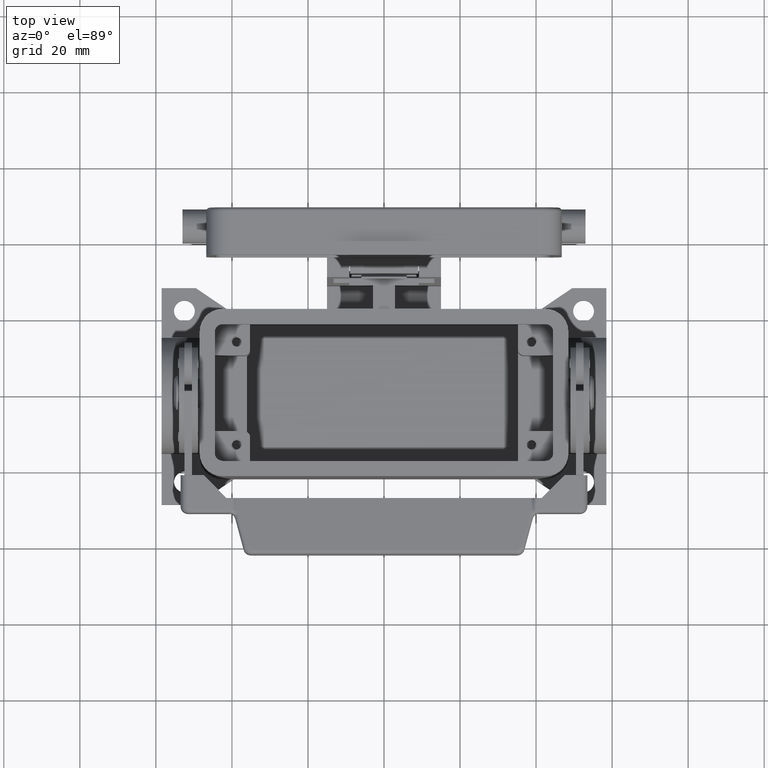
[diagram: clean part render]
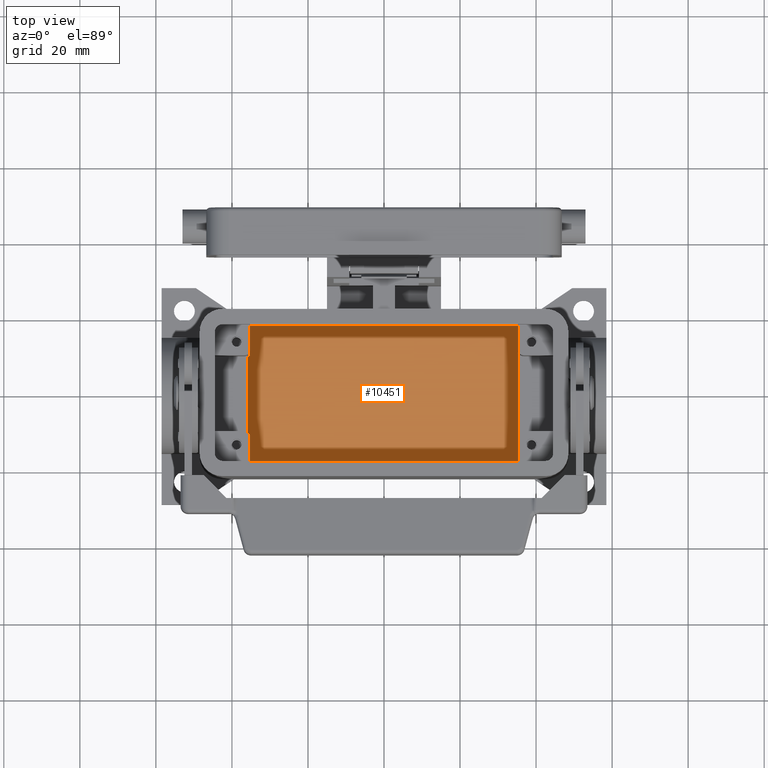
[diagram: same view with one face highlighted and labeled with its STEP entity id]
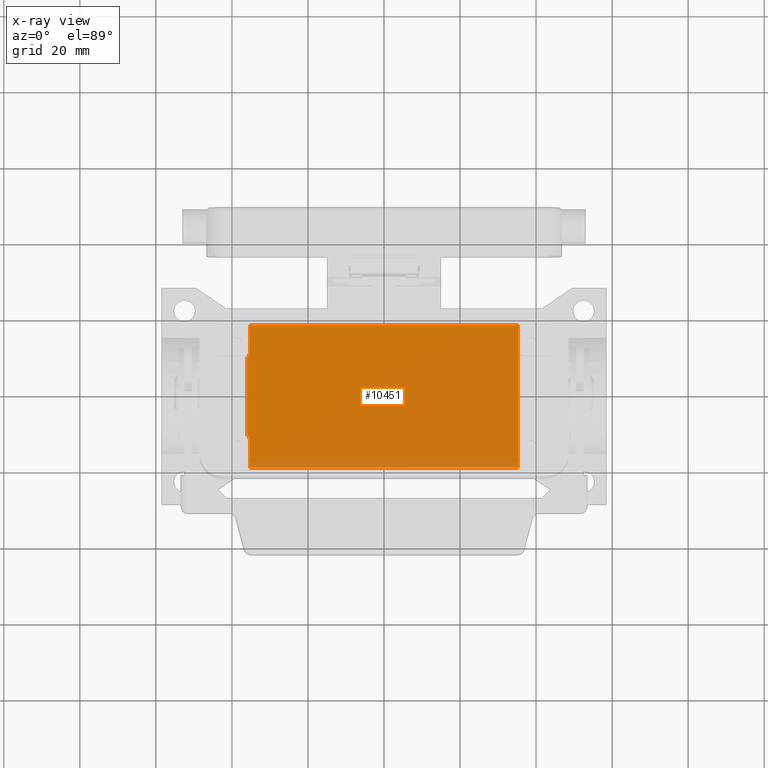
[diagram: x-ray of the same camera — body ghosted, the highlighted face saturated]
A machine part, top view. The second image highlights one B-rep face of the part: STEP entity #10451.
The next image is the same camera in x-ray: the body ghosted, the highlighted face saturated — about 5% of this face is hidden behind the body in this view.
In plain terms, the highlighted planar face has unit normal (0, 0, 1).
Its self-contained STEP definition (entity closure, byte-faithful):
#9381=CARTESIAN_POINT('',(-35.250000000000000,18.750000000000000,-30.0));
#9382=VERTEX_POINT('',#9381);
#9389=CARTESIAN_POINT('',(35.249999999999986,18.750000000000000,-30.0));
#9390=VERTEX_POINT('',#9389);
#9391=CARTESIAN_POINT('',(35.249999999999986,18.750000000000000,-30.0));
#9392=DIRECTION('',(-1.0,0.0,0.0));
#9393=VECTOR('',#9392,70.499999999999986);
#9394=LINE('',#9391,#9393);
#9395=EDGE_CURVE('',#9390,#9382,#9394,.T.);
#9503=CARTESIAN_POINT('',(35.249999999999993,-18.750000000000000,-30.0));
#9504=VERTEX_POINT('',#9503);
#9511=CARTESIAN_POINT('',(-35.250000000000000,-18.750000000000000,-30.0));
#9512=VERTEX_POINT('',#9511);
#9513=CARTESIAN_POINT('',(-35.250000000000000,-18.750000000000000,-30.0));
#9514=DIRECTION('',(1.0,0.0,0.0));
#9515=VECTOR('',#9514,70.500000000000000);
#9516=LINE('',#9513,#9515);
#9517=EDGE_CURVE('',#9512,#9504,#9516,.T.);
#9792=CARTESIAN_POINT('',(35.249999999999993,-18.750000000000000,-30.0));
#9793=DIRECTION('',(0.0,1.0,0.0));
#9794=VECTOR('',#9793,37.500000000000000);
#9795=LINE('',#9792,#9794);
#9796=EDGE_CURVE('',#9504,#9390,#9795,.T.);
#9898=CARTESIAN_POINT('',(-35.250000000000000,11.500000000000000,-29.999999999999993));
#9899=VERTEX_POINT('',#9898);
#9900=CARTESIAN_POINT('',(-35.250000000000000,18.750000000000000,-30.0));
#9901=DIRECTION('',(0.0,-1.0,0.0));
#9902=VECTOR('',#9901,7.250000000000000);
#9903=LINE('',#9900,#9902);
#9904=EDGE_CURVE('',#9382,#9899,#9903,.T.);
#9922=CARTESIAN_POINT('',(-35.250000000000000,-11.500000000000000,-29.999999999999993));
#9923=VERTEX_POINT('',#9922);
#9924=CARTESIAN_POINT('',(-35.250000000000000,-11.500000000000000,-29.999999999999993));
#9925=DIRECTION('',(0.0,-1.0,0.0));
#9926=VECTOR('',#9925,7.250000000000000);
#9927=LINE('',#9924,#9926);
#9928=EDGE_CURVE('',#9923,#9512,#9927,.T.);
#10415=CARTESIAN_POINT('',(-2.220446E-015,3.531322E-016,-29.999999999999996));
#10416=DIRECTION('',(0.0,0.0,1.0));
#10417=DIRECTION('',(1.0,0.0,0.0));
#10418=AXIS2_PLACEMENT_3D('',#10415,#10416,#10417);
#10419=PLANE('',#10418);
#10420=CARTESIAN_POINT('',(-36.0,10.200961894323338,-29.999999999999993));
#10421=VERTEX_POINT('',#10420);
#10422=CARTESIAN_POINT('',(-36.0,-10.200961894323326,-29.999999999999993));
#10423=VERTEX_POINT('',#10422);
#10424=CARTESIAN_POINT('',(-36.0,10.200961894323338,-29.999999999999993));
#10425=DIRECTION('',(0.0,-1.0,0.0));
#10426=VECTOR('',#10425,20.401923788646663);
#10427=LINE('',#10424,#10426);
#10428=EDGE_CURVE('',#10421,#10423,#10427,.T.);
#10429=ORIENTED_EDGE('',*,*,#10428,.T.);
#10430=CARTESIAN_POINT('',(-36.750000000000000,-11.500000000000000,-29.999999999999993));
#10431=DIRECTION('',(0.0,0.0,-1.0));
#10432=DIRECTION('',(-1.0,0.0,0.0));
#10433=AXIS2_PLACEMENT_3D('',#10430,#10431,#10432);
#10434=CIRCLE('',#10433,1.500000000000012);
#10435=EDGE_CURVE('',#10423,#9923,#10434,.T.);
#10436=ORIENTED_EDGE('',*,*,#10435,.T.);
#10437=ORIENTED_EDGE('',*,*,#9928,.T.);
#10438=ORIENTED_EDGE('',*,*,#9517,.T.);
#10439=ORIENTED_EDGE('',*,*,#9796,.T.);
#10440=ORIENTED_EDGE('',*,*,#9395,.T.);
#10441=ORIENTED_EDGE('',*,*,#9904,.T.);
#10442=CARTESIAN_POINT('',(-36.750000000000007,11.500000000000000,-29.999999999999993));
#10443=DIRECTION('',(0.0,0.0,-1.0));
#10444=DIRECTION('',(0.0,-1.0,0.0));
#10445=AXIS2_PLACEMENT_3D('',#10442,#10443,#10444);
#10446=CIRCLE('',#10445,1.500000000000004);
#10447=EDGE_CURVE('',#9899,#10421,#10446,.T.);
#10448=ORIENTED_EDGE('',*,*,#10447,.T.);
#10449=EDGE_LOOP('',(#10429,#10436,#10437,#10438,#10439,#10440,#10441,#10448));
#10450=FACE_OUTER_BOUND('',#10449,.T.);
#10451=ADVANCED_FACE('',(#10450),#10419,.T.);